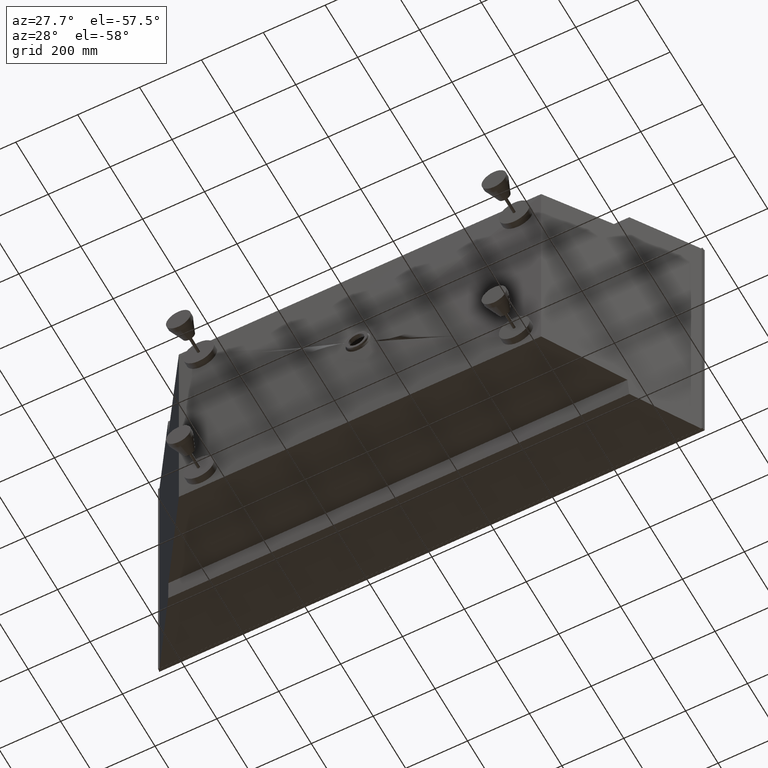
[diagram: clean part render]
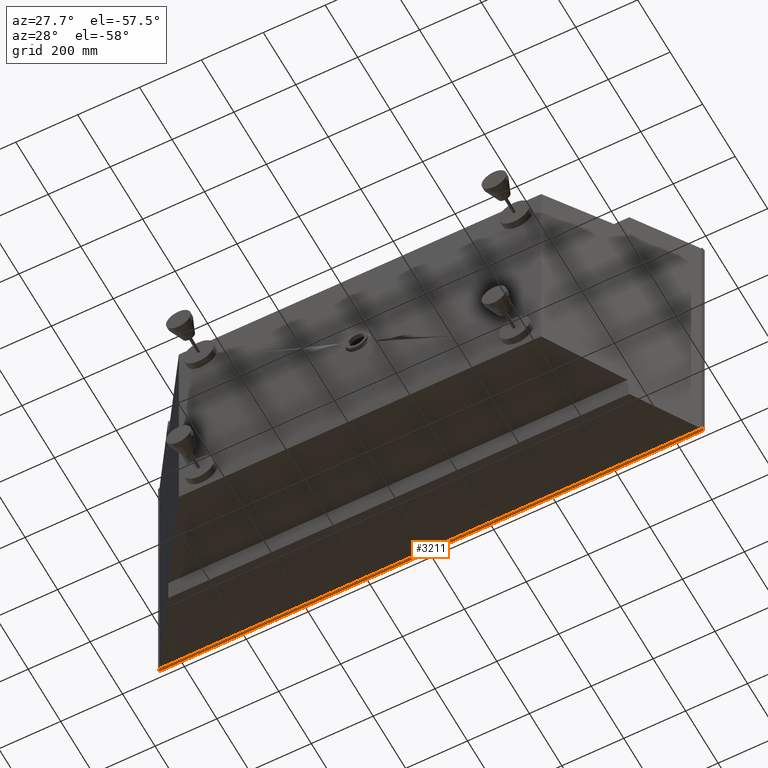
[diagram: same view with one face highlighted and labeled with its STEP entity id]
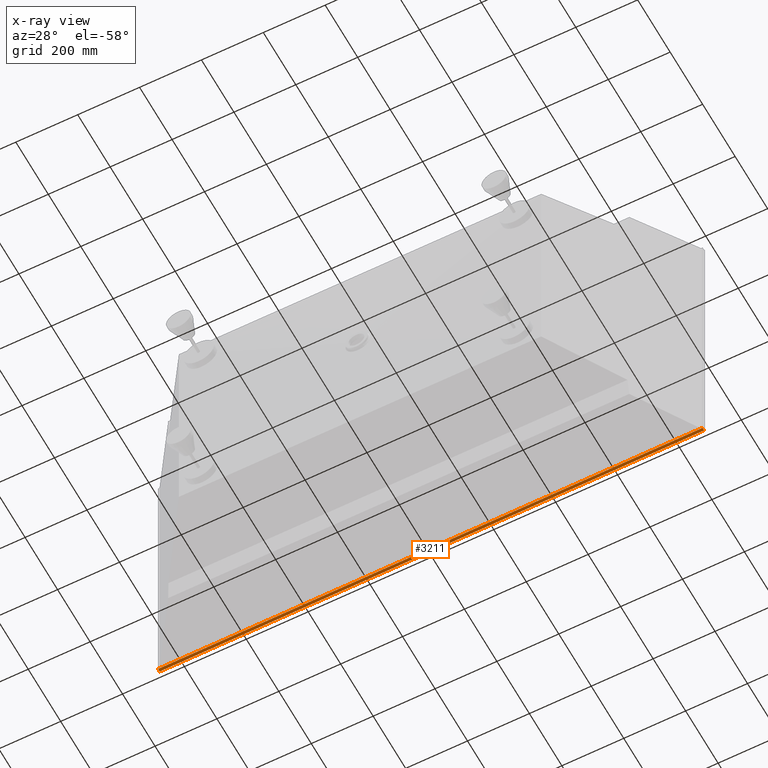
[diagram: x-ray of the same camera — body ghosted, the highlighted face saturated]
A machine part, auxiliary view. The second image highlights one B-rep face of the part: STEP entity #3211.
The next image is the same camera in x-ray: the body ghosted, the highlighted face saturated — about 0% of this face is hidden behind the body in this view.
In plain terms, the highlighted planar face has unit normal (0, 0, -1).
Its self-contained STEP definition (entity closure, byte-faithful):
#108 = ORIENTED_EDGE ( 'NONE', *, *, #7851, .F. ) ;
#600 = VERTEX_POINT ( 'NONE', #6315 ) ;
#723 = ORIENTED_EDGE ( 'NONE', *, *, #8524, .F. ) ;
#779 = ORIENTED_EDGE ( 'NONE', *, *, #3798, .T. ) ;
#1028 = CARTESIAN_POINT ( 'NONE',  ( -880.0000000000001100, -10.00000000000000000, -479.9999999999996600 ) ) ;
#1131 = DIRECTION ( 'NONE',  ( 0.0000000000000000000, 1.000000000000000000, 0.0000000000000000000 ) ) ;
#1326 = VERTEX_POINT ( 'NONE', #2530 ) ;
#1393 = VECTOR ( 'NONE', #5048, 1000.000000000000000 ) ;
#1632 = DIRECTION ( 'NONE',  ( -1.000000000000000000, 0.0000000000000000000, -0.0000000000000000000 ) ) ;
#1640 = DIRECTION ( 'NONE',  ( 0.0000000000000000000, 0.0000000000000000000, -1.000000000000000000 ) ) ;
#1719 = CARTESIAN_POINT ( 'NONE',  ( -880.0000000000001100, -10.00000000000000000, -479.9999999999996600 ) ) ;
#2415 = CARTESIAN_POINT ( 'NONE',  ( 879.9999999999996600, 0.0000000000000000000, -479.9999999999996600 ) ) ;
#2450 = VECTOR ( 'NONE', #8369, 1000.000000000000000 ) ;
#2465 = PLANE ( 'NONE',  #5194 ) ;
#2530 = CARTESIAN_POINT ( 'NONE',  ( -880.0000000000001100, -10.00000000000000000, -479.9999999999996600 ) ) ;
#2731 = CARTESIAN_POINT ( 'NONE',  ( -880.0000000000001100, 0.0000000000000000000, -479.9999999999996600 ) ) ;
#3171 = LINE ( 'NONE', #5000, #1393 ) ;
#3211 = ADVANCED_FACE ( 'NONE', ( #6307 ), #2465, .T. ) ;
#3511 = CARTESIAN_POINT ( 'NONE',  ( 879.9999999999996600, -10.00000000000000000, -479.9999999999996600 ) ) ;
#3689 = LINE ( 'NONE', #3511, #7150 ) ;
#3798 = EDGE_CURVE ( 'NONE', #600, #1326, #3171, .T. ) ;
#4221 = VECTOR ( 'NONE', #1131, 1000.000000000000000 ) ;
#4428 = DIRECTION ( 'NONE',  ( 0.0000000000000000000, 1.000000000000000000, 0.0000000000000000000 ) ) ;
#4648 = LINE ( 'NONE', #8406, #2450 ) ;
#5000 = CARTESIAN_POINT ( 'NONE',  ( -880.0000000000001100, -10.00000000000000000, -479.9999999999996600 ) ) ;
#5034 = ORIENTED_EDGE ( 'NONE', *, *, #5463, .T. ) ;
#5048 = DIRECTION ( 'NONE',  ( -1.000000000000000000, -0.0000000000000000000, -0.0000000000000000000 ) ) ;
#5194 = AXIS2_PLACEMENT_3D ( 'NONE', #1719, #1640, #1632 ) ;
#5463 = EDGE_CURVE ( 'NONE', #1326, #8073, #8029, .T. ) ;
#6307 = FACE_OUTER_BOUND ( 'NONE', #8257, .T. ) ;
#6315 = CARTESIAN_POINT ( 'NONE',  ( 879.9999999999996600, -10.00000000000000000, -479.9999999999996600 ) ) ;
#6983 = VERTEX_POINT ( 'NONE', #2415 ) ;
#7150 = VECTOR ( 'NONE', #4428, 1000.000000000000000 ) ;
#7851 = EDGE_CURVE ( 'NONE', #600, #6983, #3689, .T. ) ;
#8029 = LINE ( 'NONE', #1028, #4221 ) ;
#8073 = VERTEX_POINT ( 'NONE', #2731 ) ;
#8257 = EDGE_LOOP ( 'NONE', ( #723, #108, #779, #5034 ) ) ;
#8369 = DIRECTION ( 'NONE',  ( -1.000000000000000000, -0.0000000000000000000, -0.0000000000000000000 ) ) ;
#8406 = CARTESIAN_POINT ( 'NONE',  ( -880.0000000000001100, 0.0000000000000000000, -479.9999999999996600 ) ) ;
#8524 = EDGE_CURVE ( 'NONE', #6983, #8073, #4648, .T. ) ;